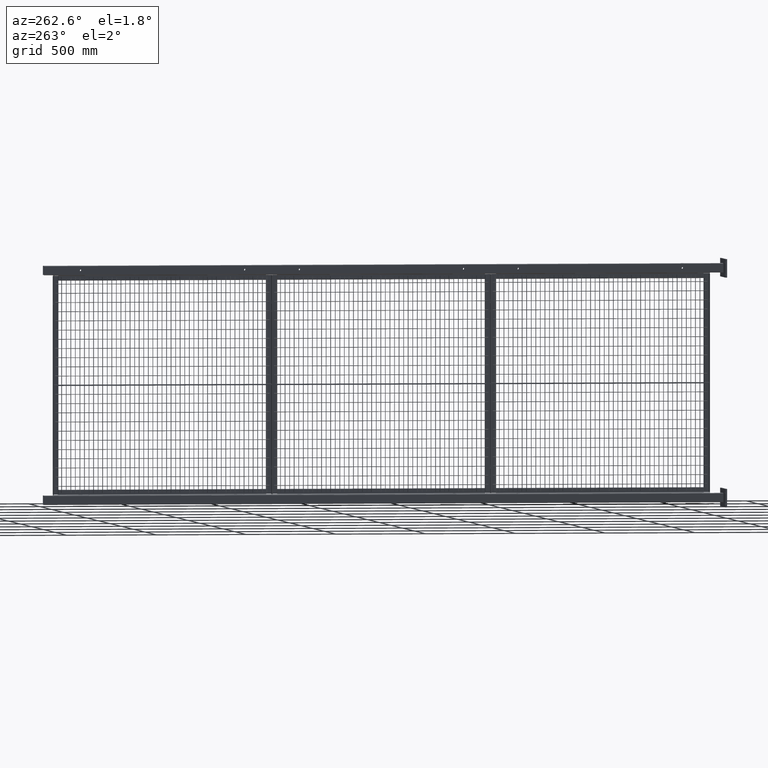
[diagram: clean part render]
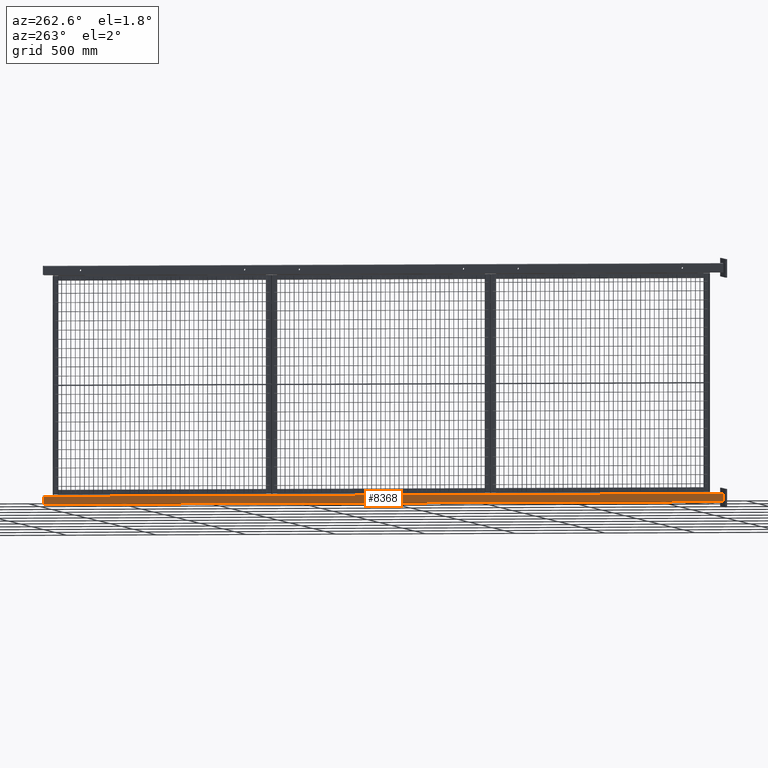
[diagram: same view with one face highlighted and labeled with its STEP entity id]
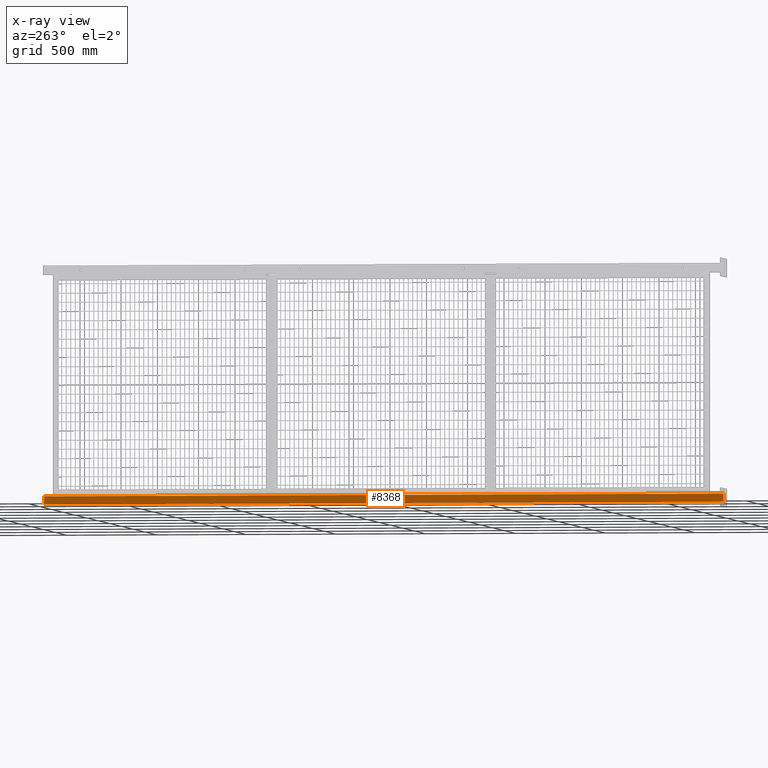
[diagram: x-ray of the same camera — body ghosted, the highlighted face saturated]
A machine part, auxiliary view. The second image highlights one B-rep face of the part: STEP entity #8368.
The next image is the same camera in x-ray: the body ghosted, the highlighted face saturated — about 0% of this face is hidden behind the body in this view.
In plain terms, the highlighted planar face has unit normal (-1, 0, -0).
Its self-contained STEP definition (entity closure, byte-faithful):
#8310=CARTESIAN_POINT('',(-0.875000000000000,1.000000000000029,149.0));
#8311=VERTEX_POINT('',#8310);
#8319=CARTESIAN_POINT('',(-0.875000000000000,1.000000000000029,0.0));
#8320=VERTEX_POINT('',#8319);
#8321=CARTESIAN_POINT('',(-0.875000000000000,1.000000000000029,0.0));
#8322=DIRECTION('',(0.0,0.0,1.0));
#8323=VECTOR('',#8322,149.0);
#8324=LINE('',#8321,#8323);
#8325=EDGE_CURVE('',#8320,#8311,#8324,.T.);
#8338=CARTESIAN_POINT('',(-0.875000000000000,1.000000000000029,0.0));
#8339=DIRECTION('',(0.0,1.0,0.0));
#8340=DIRECTION('',(0.0,0.0,1.0));
#8341=AXIS2_PLACEMENT_3D('',#8338,#8339,#8340);
#8342=PLANE('',#8341);
#8343=CARTESIAN_POINT('',(0.875000000000000,1.000000000000029,149.0));
#8344=VERTEX_POINT('',#8343);
#8345=CARTESIAN_POINT('',(-0.875000000000000,1.000000000000029,149.0));
#8346=DIRECTION('',(1.0,0.0,0.0));
#8347=VECTOR('',#8346,1.750000000000000);
#8348=LINE('',#8345,#8347);
#8349=EDGE_CURVE('',#8311,#8344,#8348,.T.);
#8350=ORIENTED_EDGE('',*,*,#8349,.T.);
#8351=CARTESIAN_POINT('',(0.875000000000000,1.000000000000029,0.0));
#8352=VERTEX_POINT('',#8351);
#8353=CARTESIAN_POINT('',(0.875000000000000,1.000000000000029,0.0));
#8354=DIRECTION('',(0.0,0.0,1.0));
#8355=VECTOR('',#8354,149.0);
#8356=LINE('',#8353,#8355);
#8357=EDGE_CURVE('',#8352,#8344,#8356,.T.);
#8358=ORIENTED_EDGE('',*,*,#8357,.F.);
#8359=CARTESIAN_POINT('',(-0.875000000000000,1.000000000000029,0.0));
#8360=DIRECTION('',(1.0,0.0,0.0));
#8361=VECTOR('',#8360,1.750000000000000);
#8362=LINE('',#8359,#8361);
#8363=EDGE_CURVE('',#8320,#8352,#8362,.T.);
#8364=ORIENTED_EDGE('',*,*,#8363,.F.);
#8365=ORIENTED_EDGE('',*,*,#8325,.T.);
#8366=EDGE_LOOP('',(#8350,#8358,#8364,#8365));
#8367=FACE_OUTER_BOUND('',#8366,.T.);
#8368=ADVANCED_FACE('',(#8367),#8342,.T.);